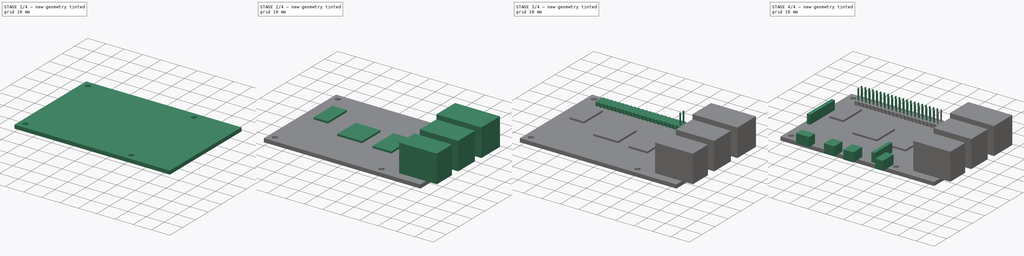
[diagram: build sequence overview — one tinted view per stage of 4, left to right]
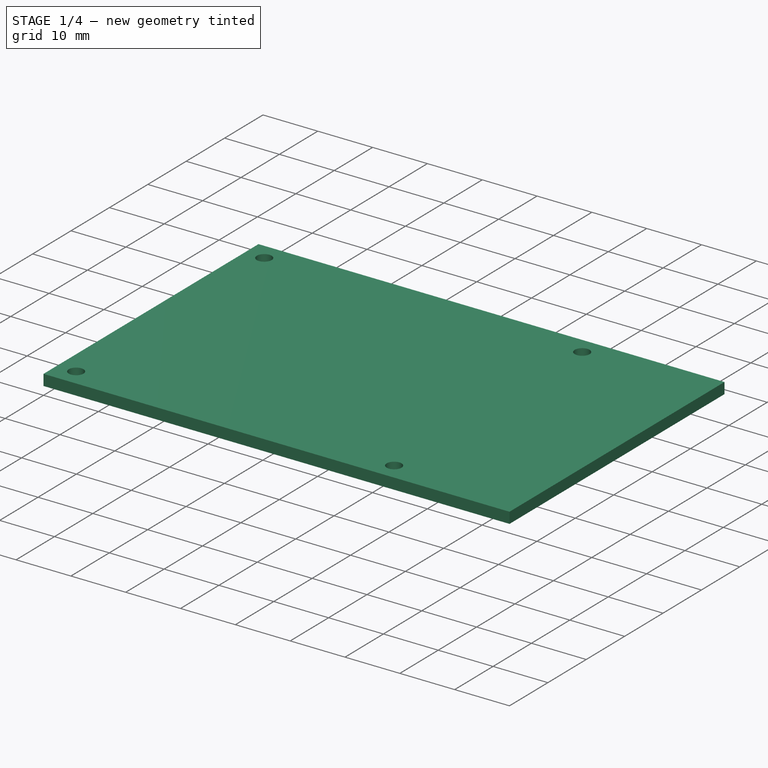
[diagram: stage 1 of 4 — iso view after this stage's code; geometry added in this stage tinted green]
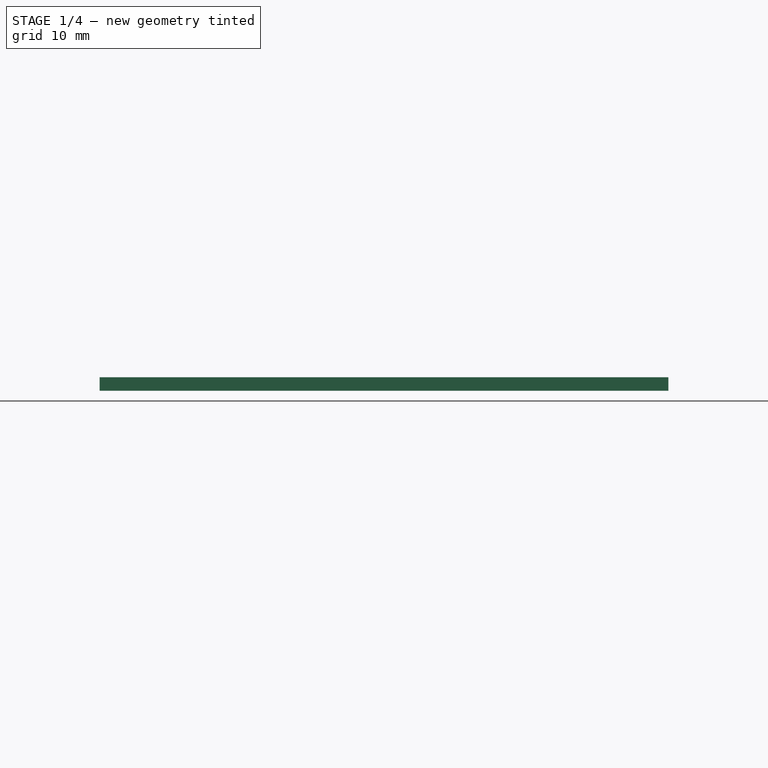
[diagram: stage 1 of 4 — front view after this stage's code; geometry added in this stage tinted green]
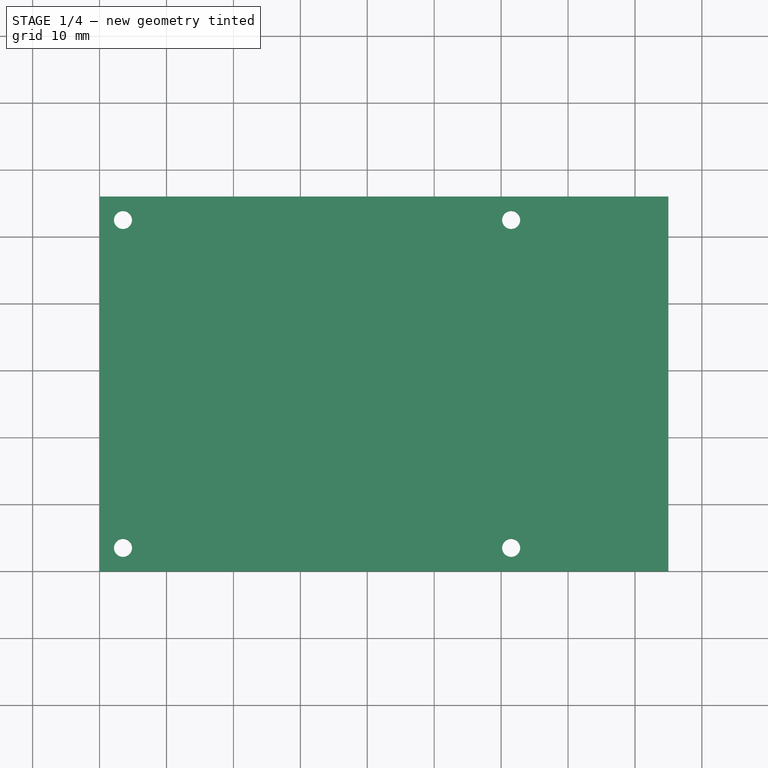
[diagram: stage 1 of 4 — top view after this stage's code; geometry added in this stage tinted green]
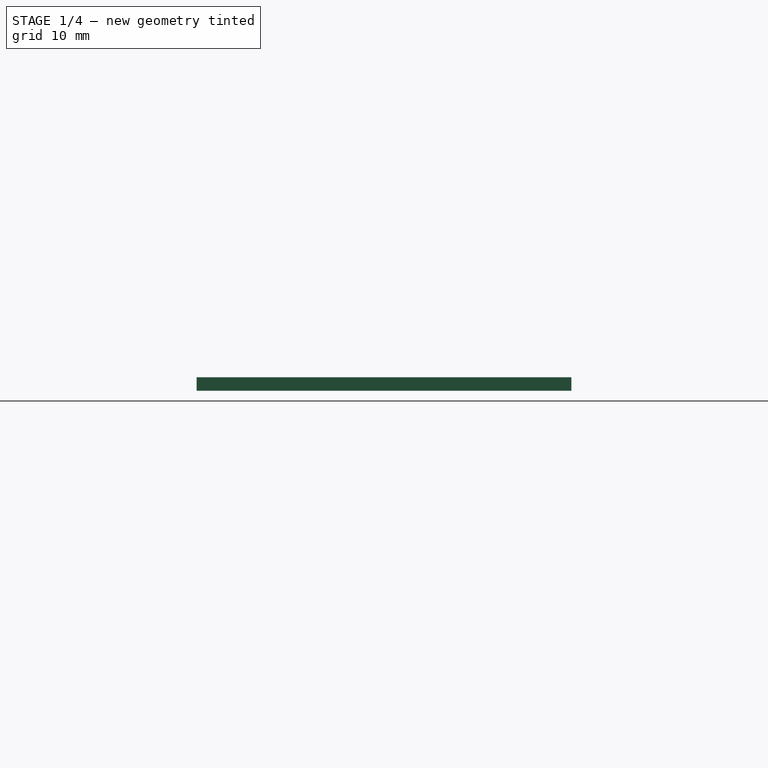
[diagram: stage 1 of 4 — right view after this stage's code; geometry added in this stage tinted green]
FCSTD DOCUMENT  (FreeCAD 0.18.2R)
Label: raspberry4
License: All rights reserved
LicenseURL: http://en.wikipedia.org/wiki/All_rights_reserved
objects: Sketcher::SketchObject×7, PartDesign::Pad×6, PartDesign::LinearPattern×2, PartDesign::Pocket×1, PartDesign::Body×1
note: 24 computed .brp shape members not serialized (recipe doc carries the construction recipe); baked Part::Feature solids carry a one-line shape summary decoded from their .brp

FEATURE [Sketcher::SketchObject] Sketch
  MapMode = 5
  Support = -> [XY_Plane]
  sketch-geometry (4):
    g0: LineSegment StartX=0 StartY=56 StartZ=0 EndX=85 EndY=56 EndZ=0
    g1: LineSegment StartX=85 StartY=56 StartZ=0 EndX=85 EndY=0 EndZ=0
    g2: LineSegment StartX=85 StartY=0 StartZ=0 EndX=0 EndY=0 EndZ=0
    g3: LineSegment StartX=0 StartY=0 StartZ=0 EndX=0 EndY=56 EndZ=0
  constraints (11):
    c: Coincident(g0,g1)
    c: Coincident(g1,g2)
    c: Coincident(g2,g3)
    c: Coincident(g3,g0)
    c: Horizontal(g0)
    c: Horizontal(g2)
    c: Vertical(g1)
    c: Vertical(g3)
    c: Distance(g2) = 85
    c: Distance(g1) = 56
    c: Coincident(g-1,g2)
FEATURE [PartDesign::Pad] Pad
  Length = 2
  Length2 = 100
  Profile = -> Sketch
  Type = 0
FEATURE [Sketcher::SketchObject] Sketch001
  MapMode = 5
  Placement = pos=(0,0,2) rot=(0,0,1;0rad)
  Support = -> [Pad]
  expr: Constraints[9] = 49 + 3.5
  expr: Constraints[0] = 2.7 / 2
  sketch-geometry (4):
    g0: Circle CenterX=3.5 CenterY=3.5 CenterZ=0 NormalX=0 NormalY=0 NormalZ=1 AngleXU=0 Radius=1.35
    g1: Circle CenterX=3.5 CenterY=52.5 CenterZ=0 NormalX=0 NormalY=0 NormalZ=1 AngleXU=0 Radius=1.35
    g2: Circle CenterX=61.5 CenterY=52.5 CenterZ=0 NormalX=0 NormalY=0 NormalZ=1 AngleXU=0 Radius=1.35
    g3: Circle CenterX=61.5 CenterY=3.5 CenterZ=0 NormalX=0 NormalY=0 NormalZ=1 AngleXU=0 Radius=1.35
  constraints (12):
    c: Radius(g0) = 1.35
    c: Equal(g0,g3)
    c: Equal(g0,g2)
    c: Equal(g0,g1)
    c: DistanceX(g0) = 3.5
    c: DistanceY(g0) = 3.5
    c: Distance(g0,g1) = 49
    c: DistanceX(g1) = 3.5
    c: DistanceX(g2) = 61.5
    c: DistanceY(g2) = 52.5
    c: DistanceY(g3) = 3.5
    c: Distance(g0,g3) = 58
FEATURE [PartDesign::Pocket] Pocket
  BaseFeature = -> Pad
  Length = 5
  Length2 = 100
  Profile = -> Sketch001
  Type = 0
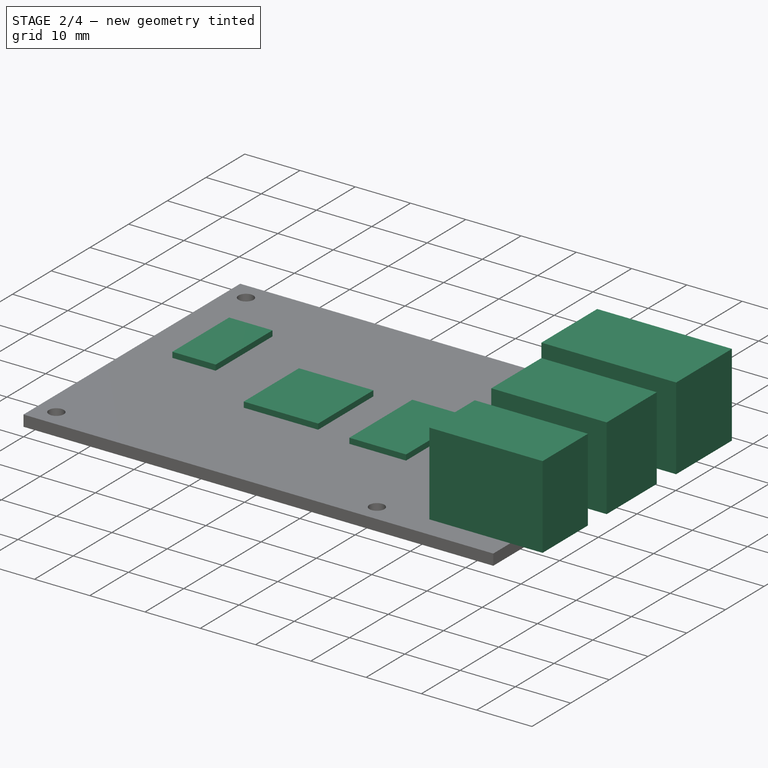
[diagram: stage 2 of 4 — iso view after this stage's code; geometry added in this stage tinted green]
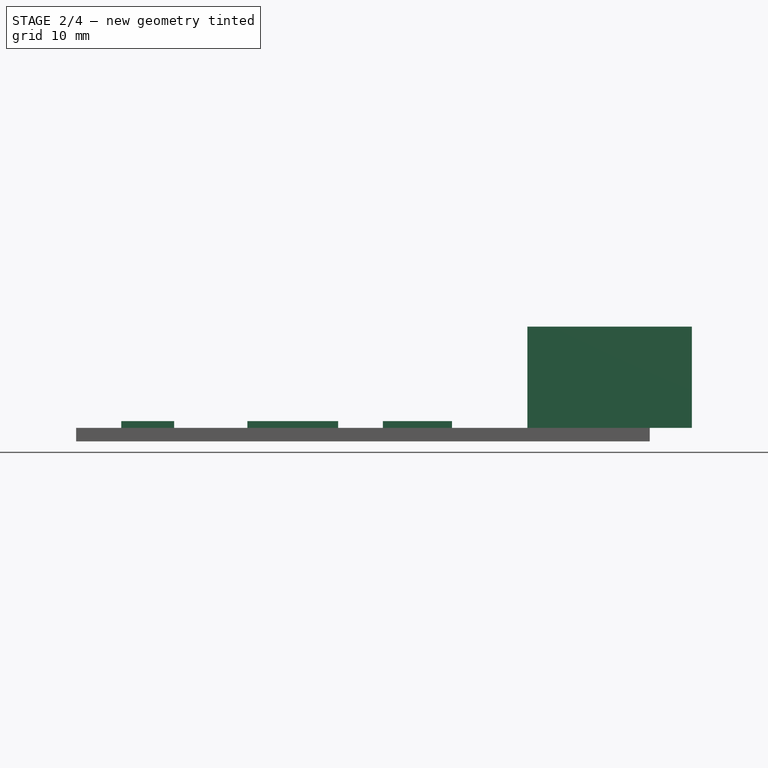
[diagram: stage 2 of 4 — front view after this stage's code; geometry added in this stage tinted green]
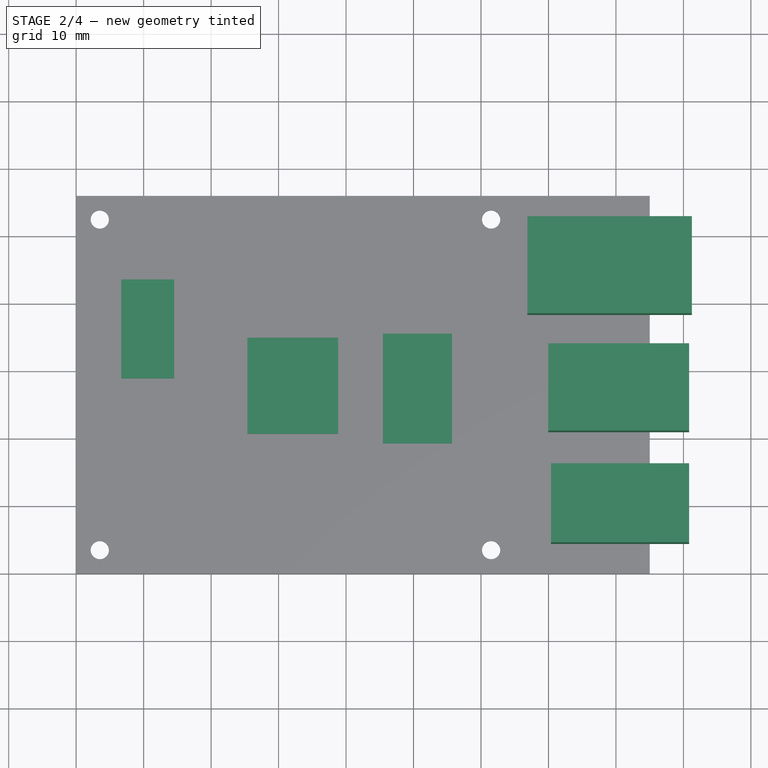
[diagram: stage 2 of 4 — top view after this stage's code; geometry added in this stage tinted green]
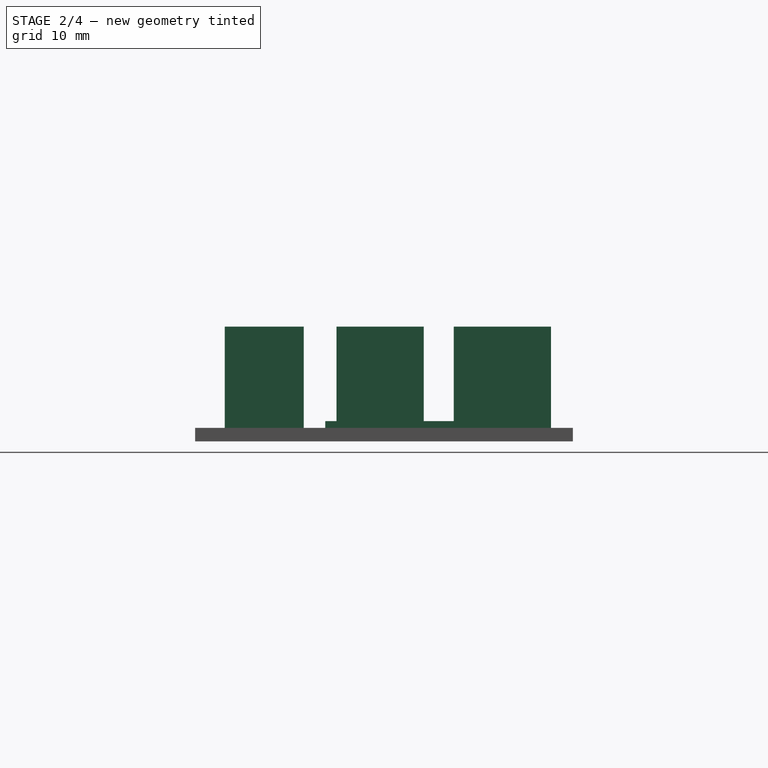
[diagram: stage 2 of 4 — right view after this stage's code; geometry added in this stage tinted green]
FEATURE [Sketcher::SketchObject] Sketch002
  MapMode = 5
  Placement = pos=(0,0,2) rot=(0,0,1;0rad)
  Support = -> [Pocket]
  sketch-geometry (12):
    g0: LineSegment StartX=66.8706 StartY=52.7429 StartZ=0 EndX=91.2468 EndY=52.7429 EndZ=0
    g1: LineSegment StartX=91.2468 StartY=52.7429 StartZ=0 EndX=91.2468 EndY=38.3327 EndZ=0
    g2: LineSegment StartX=91.2468 StartY=38.3327 StartZ=0 EndX=66.8706 EndY=38.3327 EndZ=0
    g3: LineSegment StartX=66.8706 StartY=38.3327 StartZ=0 EndX=66.8706 EndY=52.7429 EndZ=0
    g4: LineSegment StartX=69.9682 StartY=33.8884 StartZ=0 EndX=90.8428 EndY=33.8884 EndZ=0
    g5: LineSegment StartX=90.8428 StartY=33.8884 StartZ=0 EndX=90.8428 EndY=20.9596 EndZ=0
    g6: LineSegment StartX=90.8428 StartY=20.9596 StartZ=0 EndX=69.9682 EndY=20.9596 EndZ=0
    g7: LineSegment StartX=69.9682 StartY=20.9596 StartZ=0 EndX=69.9682 EndY=33.8884 EndZ=0
    g8: LineSegment StartX=70.3722 StartY=16.1113 StartZ=0 EndX=90.8428 EndY=16.1113 EndZ=0
    g9: LineSegment StartX=90.8428 StartY=16.1113 StartZ=0 EndX=90.8428 EndY=4.39459 EndZ=0
    g10: LineSegment StartX=90.8428 StartY=4.39459 StartZ=0 EndX=70.3722 EndY=4.39459 EndZ=0
    g11: LineSegment StartX=70.3722 StartY=4.39459 StartZ=0 EndX=70.3722 EndY=16.1113 EndZ=0
  constraints (24):
    c: Coincident(g0,g1)
    c: Coincident(g1,g2)
    c: Coincident(g2,g3)
    c: Coincident(g3,g0)
    c: Horizontal(g0)
    c: Horizontal(g2)
    c: Vertical(g1)
    c: Vertical(g3)
    c: Coincident(g4,g5)
    c: Coincident(g5,g6)
    c: Coincident(g6,g7)
    c: Coincident(g7,g4)
    c: Horizontal(g4)
    c: Horizontal(g6)
    c: Vertical(g5)
    c: Vertical(g7)
    c: Coincident(g8,g9)
    c: Coincident(g9,g10)
    c: Coincident(g10,g11)
    c: Coincident(g11,g8)
    c: Horizontal(g8)
    c: Horizontal(g10)
    c: Vertical(g9)
    c: Vertical(g11)
FEATURE [PartDesign::Pad] Pad001
  BaseFeature = -> Pocket
  Length = 15
  Length2 = 100
  Profile = -> Sketch002
  Type = 0
FEATURE [Sketcher::SketchObject] Sketch003
  MapMode = 5
  Placement = pos=(0,0,2) rot=(0,0,1;0rad)
  Support = -> [Pad001]
  sketch-geometry (12):
    g0: LineSegment StartX=45.4574 StartY=35.564 StartZ=0 EndX=55.7038 EndY=35.564 EndZ=0
    g1: LineSegment StartX=55.7038 StartY=35.564 StartZ=0 EndX=55.7038 EndY=19.2901 EndZ=0
    g2: LineSegment StartX=55.7038 StartY=19.2901 StartZ=0 EndX=45.4574 EndY=19.2901 EndZ=0
    g3: LineSegment StartX=45.4574 StartY=19.2901 StartZ=0 EndX=45.4574 EndY=35.564 EndZ=0
    g4: LineSegment StartX=25.3662 StartY=34.9612 StartZ=0 EndX=38.8273 EndY=34.9612 EndZ=0
    g5: LineSegment StartX=38.8273 StartY=34.9612 StartZ=0 EndX=38.8273 EndY=20.6965 EndZ=0
    g6: LineSegment StartX=38.8273 StartY=20.6965 StartZ=0 EndX=25.3662 EndY=20.6965 EndZ=0
    g7: LineSegment StartX=25.3662 StartY=20.6965 StartZ=0 EndX=25.3662 EndY=34.9612 EndZ=0
    g8: LineSegment StartX=6.68148 StartY=43.6004 StartZ=0 EndX=14.517 EndY=43.6004 EndZ=0
    g9: LineSegment StartX=14.517 StartY=43.6004 StartZ=0 EndX=14.517 EndY=28.9339 EndZ=0
    g10: LineSegment StartX=14.517 StartY=28.9339 StartZ=0 EndX=6.68148 EndY=28.9339 EndZ=0
    g11: LineSegment StartX=6.68148 StartY=28.9339 StartZ=0 EndX=6.68148 EndY=43.6004 EndZ=0
  constraints (24):
    c: Coincident(g0,g1)
    c: Coincident(g1,g2)
    c: Coincident(g2,g3)
    c: Coincident(g3,g0)
    c: Horizontal(g0)
    c: Horizontal(g2)
    c: Vertical(g1)
    c: Vertical(g3)
    c: Coincident(g4,g5)
    c: Coincident(g5,g6)
    c: Coincident(g6,g7)
    c: Coincident(g7,g4)
    c: Horizontal(g4)
    c: Horizontal(g6)
    c: Vertical(g5)
    c: Vertical(g7)
    c: Coincident(g8,g9)
    c: Coincident(g9,g10)
    c: Coincident(g10,g11)
    c: Coincident(g11,g8)
    c: Horizontal(g8)
    c: Horizontal(g10)
    c: Vertical(g9)
    c: Vertical(g11)
FEATURE [PartDesign::Pad] Pad002
  BaseFeature = -> Pad001
  Length = 1
  Length2 = 100
  Profile = -> Sketch003
  Type = 0
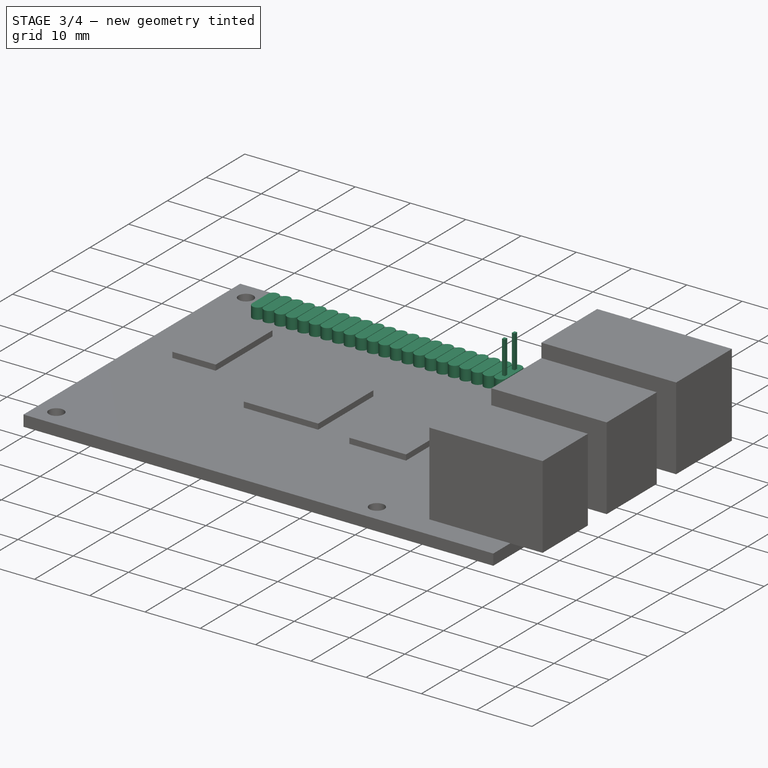
[diagram: stage 3 of 4 — iso view after this stage's code; geometry added in this stage tinted green]
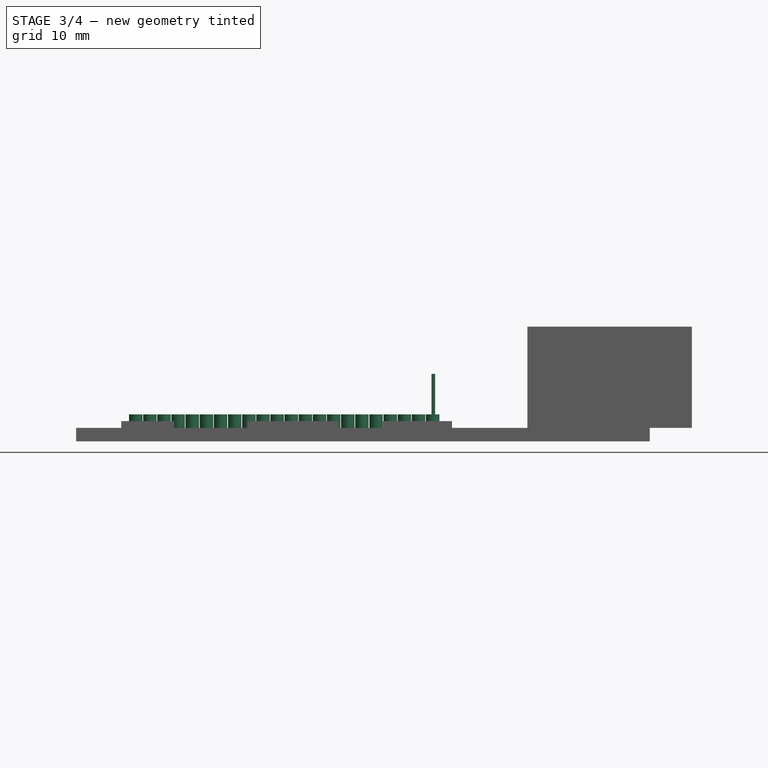
[diagram: stage 3 of 4 — front view after this stage's code; geometry added in this stage tinted green]
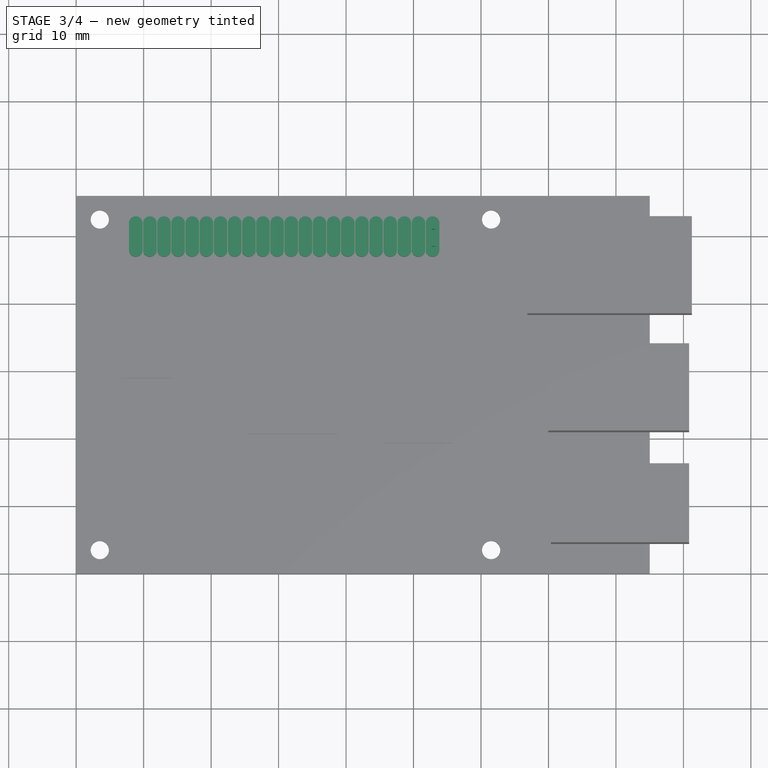
[diagram: stage 3 of 4 — top view after this stage's code; geometry added in this stage tinted green]
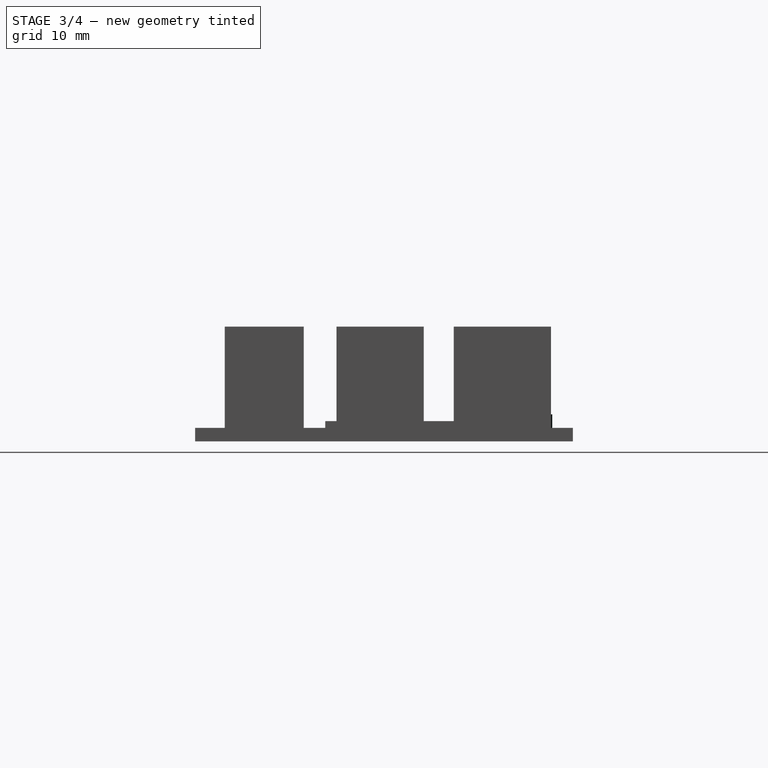
[diagram: stage 3 of 4 — right view after this stage's code; geometry added in this stage tinted green]
FEATURE [Sketcher::SketchObject] Sketch004
  MapMode = 5
  Placement = pos=(0,0,2) rot=(0,0,1;0rad)
  Support = -> [Pad002]
  sketch-geometry (4):
    g0: ArcOfCircle CenterX=52.8281 CenterY=47.9398 CenterZ=0 NormalX=0 NormalY=0 NormalZ=1 AngleXU=0 Radius=1 StartAngle=3.14159 EndAngle=6.28319
    g1: ArcOfCircle CenterX=52.8281 CenterY=51.9437 CenterZ=0 NormalX=0 NormalY=0 NormalZ=1 AngleXU=0 Radius=1 StartAngle=-1.8e-15 EndAngle=3.14159
    g2: LineSegment StartX=53.8281 StartY=47.9398 StartZ=0 EndX=53.8281 EndY=51.9437 EndZ=0
    g3: LineSegment StartX=51.8281 StartY=47.9398 StartZ=0 EndX=51.8281 EndY=51.9437 EndZ=0
  constraints (7):
    c: Tangent(g0,g3) = 1.5708
    c: Tangent(g0,g2) = -1.5708
    c: Tangent(g2,g1) = -1.5708
    c: Tangent(g3,g1) = 1.5708
    c: Vertical(g2)
    c: Equal(g0,g1)
    c: Distance(g1,g2) = 2
FEATURE [PartDesign::Pad] Pad003
  BaseFeature = -> Pad002
  Length = 2
  Length2 = 100
  Profile = -> Sketch004
  Type = 0
FEATURE [PartDesign::LinearPattern] LinearPattern
  BaseFeature = -> Pad003
  Direction = -> Sketch004 [H_Axis]
  Length = 44
  Occurrences = 22
  Originals = -> [Pad003]
  Reversed = true
FEATURE [Sketcher::SketchObject] Sketch005
  MapMode = 5
  Placement = pos=(0,0,4) rot=(0,0,1;0rad)
  Support = -> [LinearPattern]
  sketch-geometry (8):
    g0: LineSegment StartX=52.6868 StartY=51.5873 StartZ=0 EndX=53.2034 EndY=51.5873 EndZ=0
    g1: LineSegment StartX=53.2034 StartY=51.5873 StartZ=0 EndX=53.2034 EndY=50.9619 EndZ=0
    g2: LineSegment StartX=53.2034 StartY=50.9619 StartZ=0 EndX=52.6868 EndY=50.9619 EndZ=0
    g3: LineSegment StartX=52.6868 StartY=50.9619 StartZ=0 EndX=52.6868 EndY=51.5873 EndZ=0
    g4: LineSegment StartX=52.6596 StartY=49.0314 StartZ=0 EndX=53.2034 EndY=49.0314 EndZ=0
    g5: LineSegment StartX=53.2034 StartY=49.0314 StartZ=0 EndX=53.2034 EndY=48.4332 EndZ=0
    g6: LineSegment StartX=53.2034 StartY=48.4332 StartZ=0 EndX=52.6596 EndY=48.4332 EndZ=0
    g7: LineSegment StartX=52.6596 StartY=48.4332 StartZ=0 EndX=52.6596 EndY=49.0314 EndZ=0
  constraints (16):
    c: Coincident(g0,g1)
    c: Coincident(g1,g2)
    c: Coincident(g2,g3)
    c: Coincident(g3,g0)
    c: Horizontal(g0)
    c: Horizontal(g2)
    c: Vertical(g1)
    c: Vertical(g3)
    c: Coincident(g4,g5)
    c: Coincident(g5,g6)
    c: Coincident(g6,g7)
    c: Coincident(g7,g4)
    c: Horizontal(g4)
    c: Horizontal(g6)
    c: Vertical(g5)
    c: Vertical(g7)
FEATURE [PartDesign::Pad] Pad004
  BaseFeature = -> LinearPattern
  Length = 6
  Length2 = 100
  Profile = -> Sketch005
  Type = 0
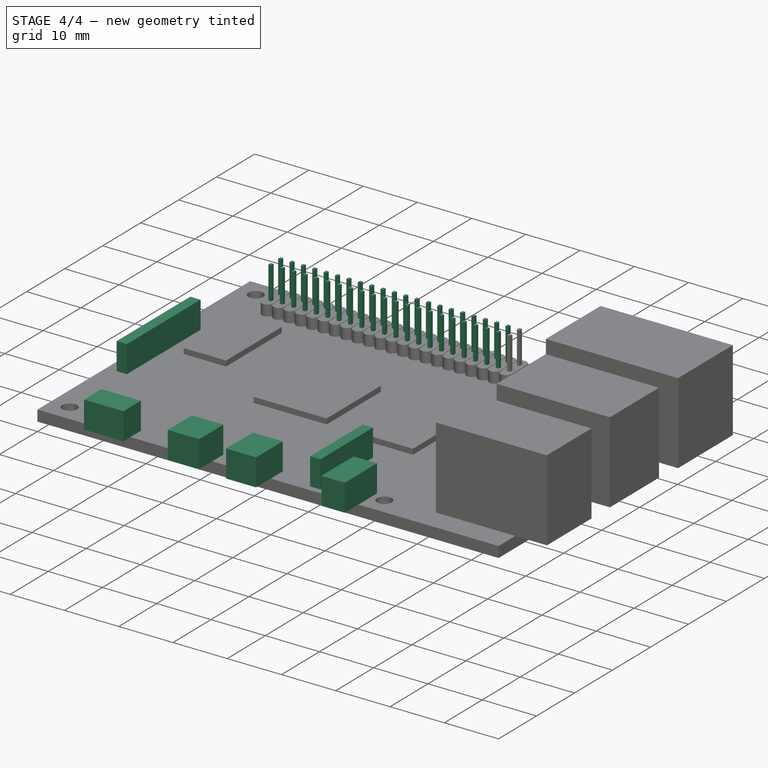
[diagram: stage 4 of 4 — iso view after this stage's code; geometry added in this stage tinted green]
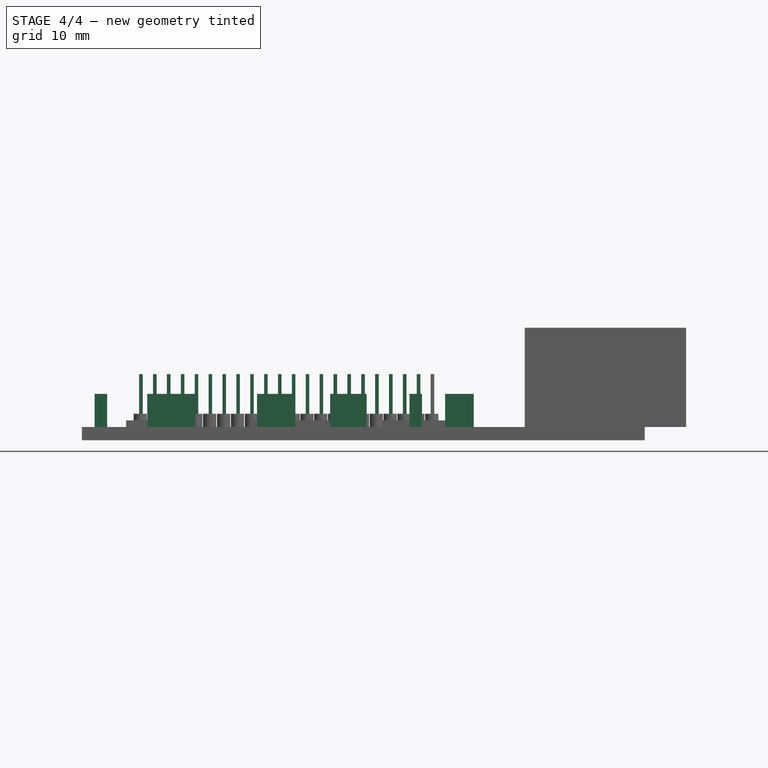
[diagram: stage 4 of 4 — front view after this stage's code; geometry added in this stage tinted green]
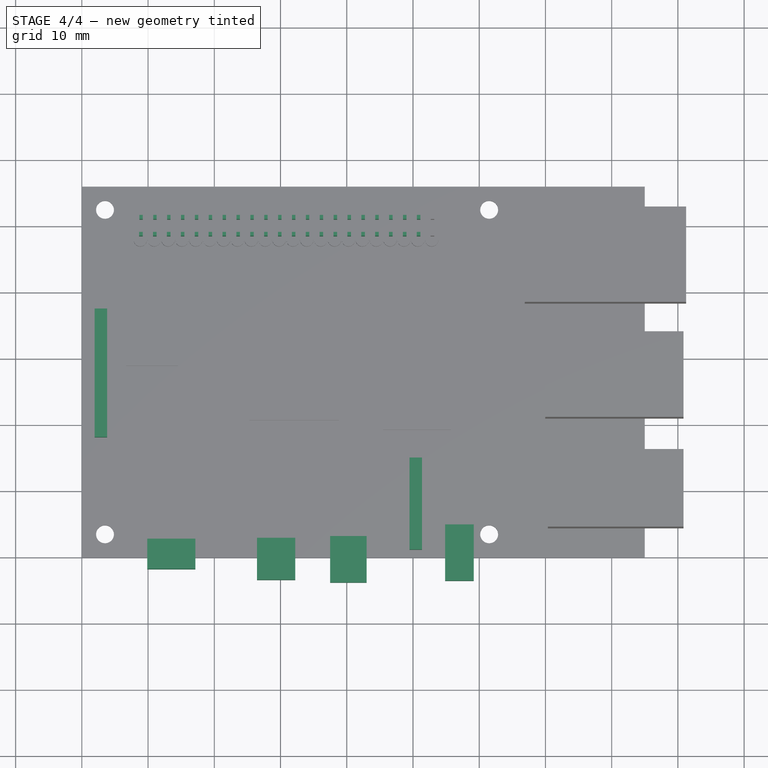
[diagram: stage 4 of 4 — top view after this stage's code; geometry added in this stage tinted green]
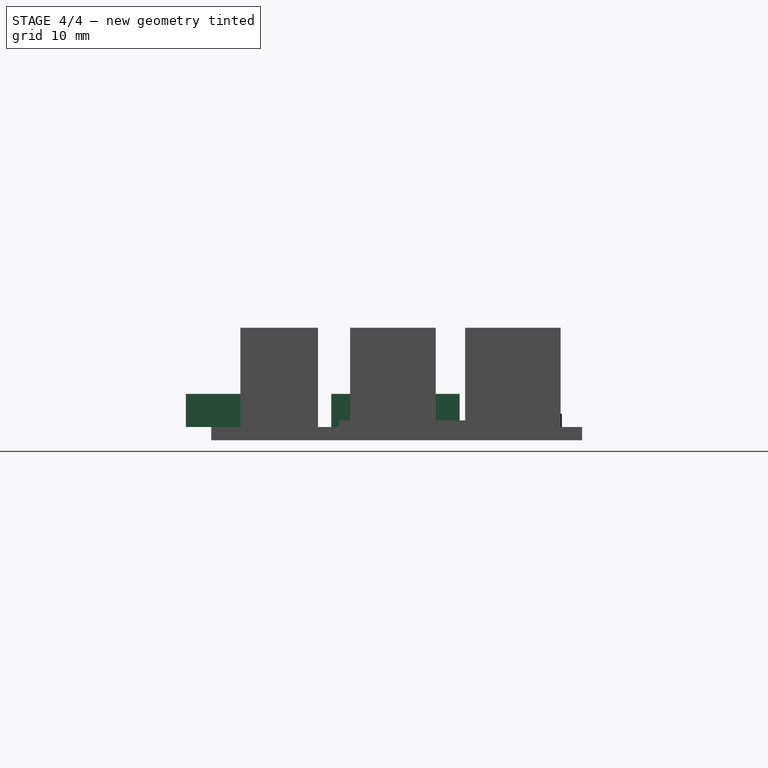
[diagram: stage 4 of 4 — right view after this stage's code; geometry added in this stage tinted green]
FEATURE [PartDesign::LinearPattern] LinearPattern001
  BaseFeature = -> Pad004
  Direction = -> Sketch005 [H_Axis]
  Length = 44
  Occurrences = 22
  Originals = -> [Pad004]
  Reversed = true
FEATURE [Sketcher::SketchObject] Sketch006
  MapMode = 5
  Placement = pos=(0,0,2) rot=(0,0,1;0rad)
  Support = -> [LinearPattern001]
  sketch-geometry (24):
    g0: LineSegment StartX=1.92895 StartY=37.5038 StartZ=0 EndX=3.8144 EndY=37.5038 EndZ=0
    g1: LineSegment StartX=3.8144 StartY=37.5038 StartZ=0 EndX=3.8144 EndY=18.1106 EndZ=0
    g2: LineSegment StartX=3.8144 StartY=18.1106 StartZ=0 EndX=1.92895 EndY=18.1106 EndZ=0
    g3: LineSegment StartX=1.92895 StartY=18.1106 StartZ=0 EndX=1.92895 EndY=37.5038 EndZ=0
    g4: LineSegment StartX=9.87477 StartY=2.75763 StartZ=0 EndX=17.1472 EndY=2.75763 EndZ=0
    g5: LineSegment StartX=17.1472 StartY=2.75763 StartZ=0 EndX=17.1472 EndY=-1.82131 EndZ=0
    g6: LineSegment StartX=17.1472 StartY=-1.82131 StartZ=0 EndX=9.87477 EndY=-1.82131 EndZ=0
    g7: LineSegment StartX=9.87477 StartY=-1.82131 StartZ=0 EndX=9.87477 EndY=2.75763 EndZ=0
    g8: LineSegment StartX=26.4398 StartY=2.89231 StartZ=0 EndX=32.2308 EndY=2.89231 EndZ=0
    g9: LineSegment StartX=32.2308 StartY=2.89231 StartZ=0 EndX=32.2308 EndY=-3.43741 EndZ=0
    g10: LineSegment StartX=32.2308 StartY=-3.43741 StartZ=0 EndX=26.4398 EndY=-3.43741 EndZ=0
    g11: LineSegment StartX=26.4398 StartY=-3.43741 StartZ=0 EndX=26.4398 EndY=2.89231 EndZ=0
    g12: LineSegment StartX=37.4831 StartY=3.16166 StartZ=0 EndX=43.0048 EndY=3.16166 EndZ=0
    g13: LineSegment StartX=43.0048 StartY=3.16166 StartZ=0 EndX=43.0048 EndY=-3.84144 EndZ=0
    g14: LineSegment StartX=43.0048 StartY=-3.84144 StartZ=0 EndX=37.4831 EndY=-3.84144 EndZ=0
    g15: LineSegment StartX=37.4831 StartY=-3.84144 StartZ=0 EndX=37.4831 EndY=3.16166 EndZ=0
    g16: LineSegment StartX=49.4692 StartY=15.0131 StartZ=0 EndX=51.3546 EndY=15.0131 EndZ=0
    g17: LineSegment StartX=51.3546 StartY=15.0131 StartZ=0 EndX=51.3546 EndY=1.14153 EndZ=0
    g18: LineSegment StartX=51.3546 StartY=1.14153 StartZ=0 EndX=49.4692 EndY=1.14153 EndZ=0
    g19: LineSegment StartX=49.4692 StartY=1.14153 StartZ=0 EndX=49.4692 EndY=15.0131 EndZ=0
    g20: LineSegment StartX=54.8562 StartY=4.91243 StartZ=0 EndX=59.1658 EndY=4.91243 EndZ=0
    g21: LineSegment StartX=59.1658 StartY=4.91243 StartZ=0 EndX=59.1658 EndY=-3.57209 EndZ=0
    g22: LineSegment StartX=59.1658 StartY=-3.57209 StartZ=0 EndX=54.8562 EndY=-3.57209 EndZ=0
    g23: LineSegment StartX=54.8562 StartY=-3.57209 StartZ=0 EndX=54.8562 EndY=4.91243 EndZ=0
  constraints (48):
    c: Coincident(g0,g1)
    c: Coincident(g1,g2)
    c: Coincident(g2,g3)
    c: Coincident(g3,g0)
    c: Horizontal(g0)
    c: Horizontal(g2)
    c: Vertical(g1)
    c: Vertical(g3)
    c: Coincident(g4,g5)
    c: Coincident(g5,g6)
    c: Coincident(g6,g7)
    c: Coincident(g7,g4)
    c: Horizontal(g4)
    c: Horizontal(g6)
    c: Vertical(g5)
    c: Vertical(g7)
    c: Coincident(g8,g9)
    c: Coincident(g9,g10)
    c: Coincident(g10,g11)
    c: Coincident(g11,g8)
    c: Horizontal(g8)
    c: Horizontal(g10)
    c: Vertical(g9)
    c: Vertical(g11)
    c: Coincident(g12,g13)
    c: Coincident(g13,g14)
    c: Coincident(g14,g15)
    c: Coincident(g15,g12)
    c: Horizontal(g12)
    c: Horizontal(g14)
    c: Vertical(g13)
    c: Vertical(g15)
    c: Coincident(g16,g17)
    c: Coincident(g17,g18)
    c: Coincident(g18,g19)
    c: Coincident(g19,g16)
    c: Horizontal(g16)
    c: Horizontal(g18)
    c: Vertical(g17)
    c: Vertical(g19)
    c: Coincident(g20,g21)
    c: Coincident(g21,g22)
    c: Coincident(g22,g23)
    c: Coincident(g23,g20)
    c: Horizontal(g20)
    c: Horizontal(g22)
    c: Vertical(g21)
    c: Vertical(g23)
FEATURE [PartDesign::Pad] Pad005
  BaseFeature = -> LinearPattern001
  Length = 5
  Length2 = 100
  Profile = -> Sketch006
  Type = 0
FEATURE [PartDesign::Body] Body
  Group = -> [Sketch,Pad,Sketch001,Pocket,Sketch002,Pad001,Sketch003,Pad002,Sketch004,Pad003,LinearPattern,Sketch005,Pad004,LinearPattern001,Sketch006,Pad005]
  Origin = -> Origin
  Tip = -> Pad005
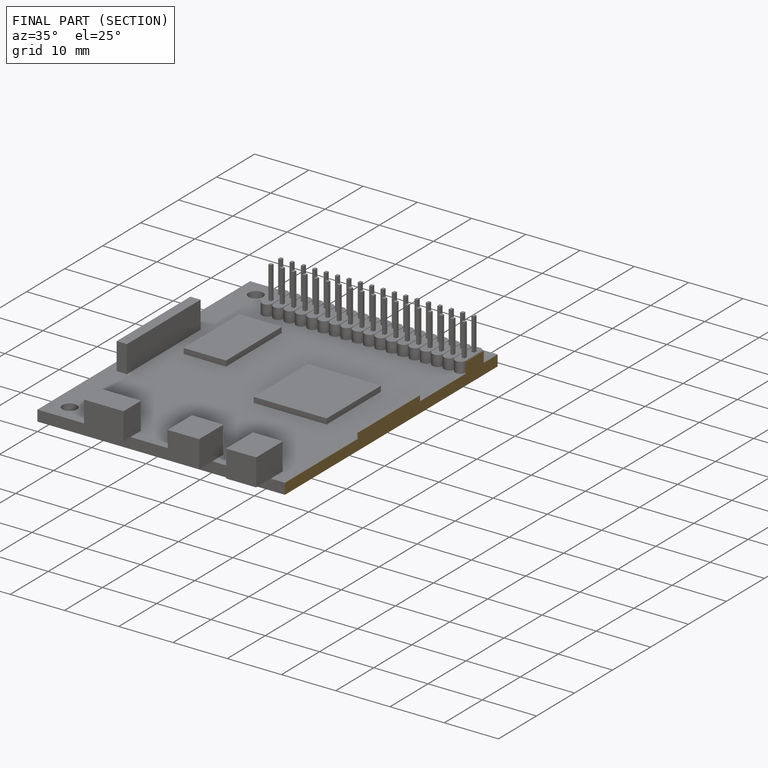
[diagram: finished part — half-section view (interior)]
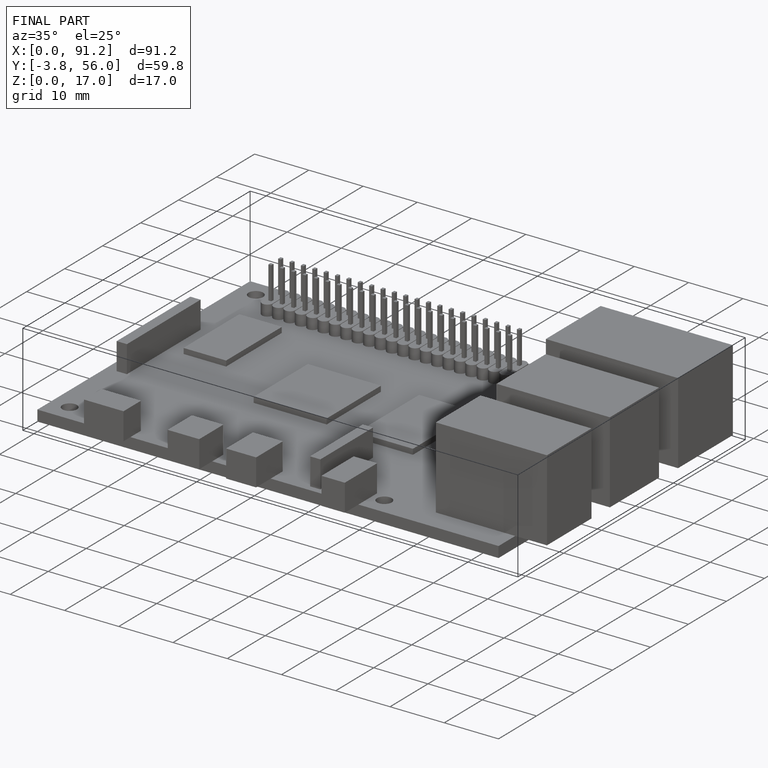
[diagram: finished part — iso view with bounding-box wireframe]
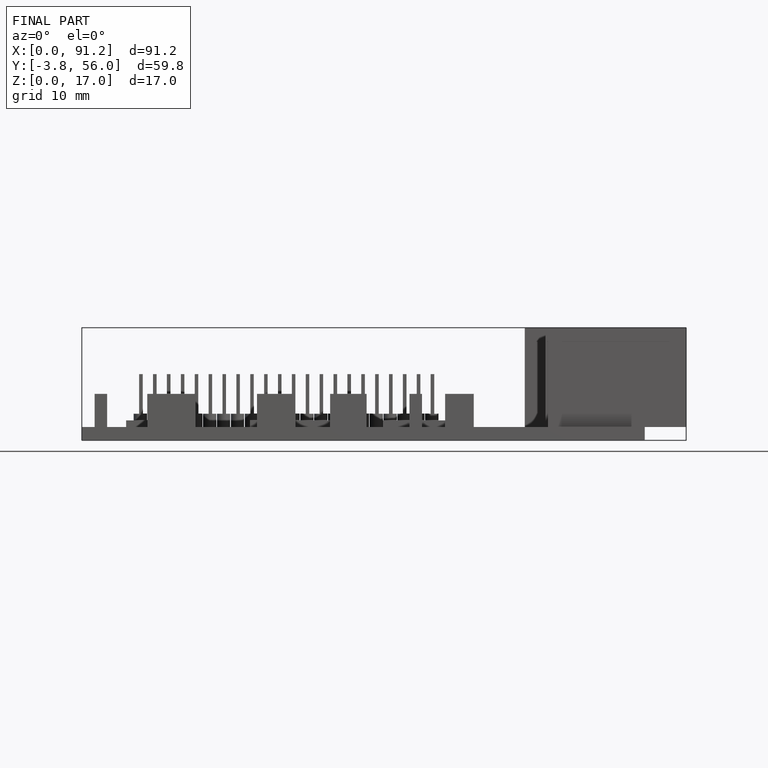
[diagram: finished part — front view with bounding-box wireframe]
